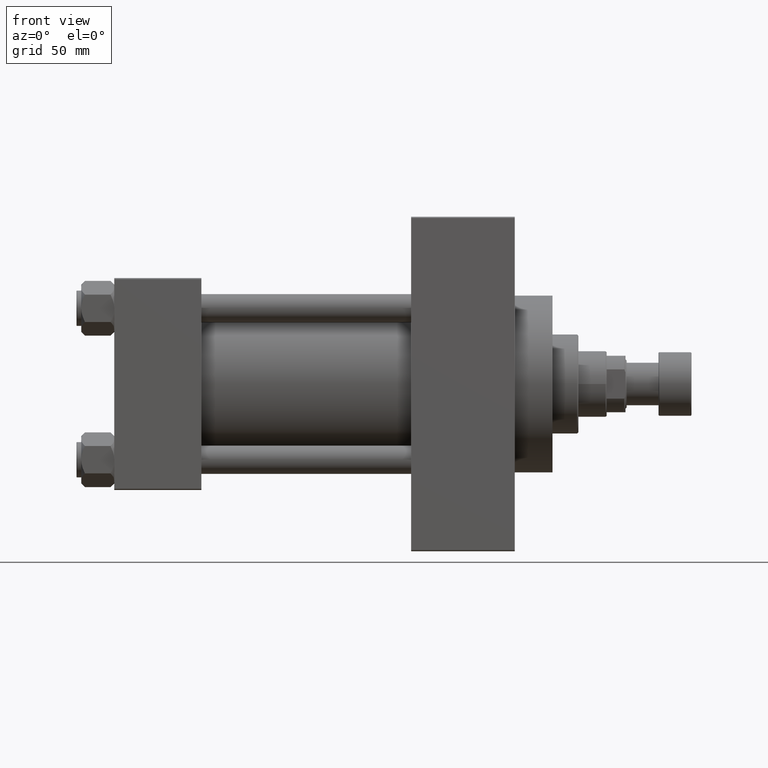
[diagram: clean part render]
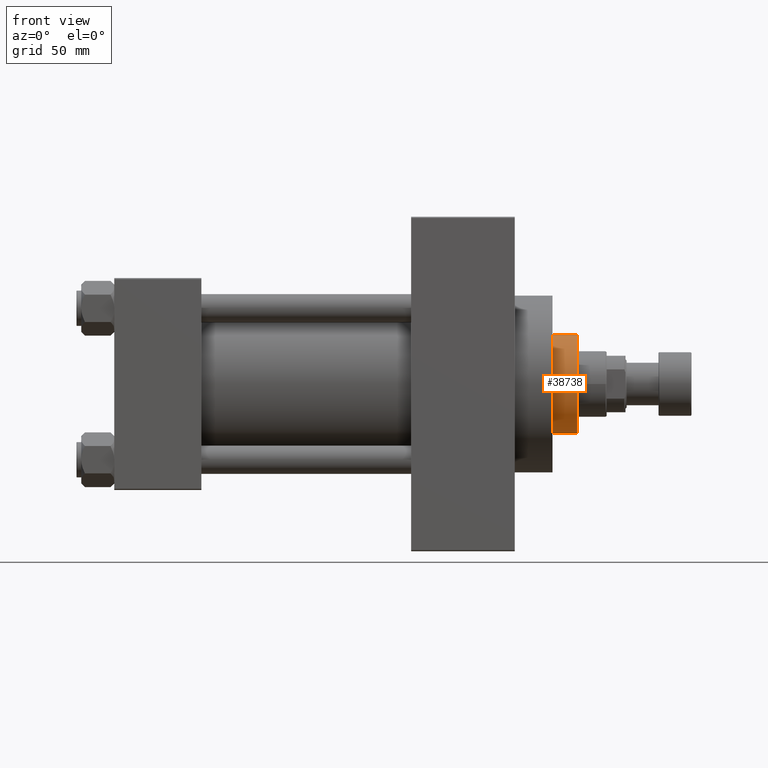
[diagram: same view with one face highlighted and labeled with its STEP entity id]
A machine part, front view. The second image highlights one B-rep face of the part: STEP entity #38738.
In plain terms, the highlighted cylindrical surface (partial cylindrical patch) has radius 21 mm, axis along (-1, -0, 0).
Its self-contained STEP definition (entity closure, byte-faithful):
#965 = CARTESIAN_POINT ( 'NONE',  ( -21.00000000000000000, 0.000000000000000000, 53.76000000000001933 ) ) ;
#2096 = ORIENTED_EDGE ( 'NONE', *, *, #23899, .T. ) ;
#3654 = ORIENTED_EDGE ( 'NONE', *, *, #12997, .F. ) ;
#5046 = CARTESIAN_POINT ( 'NONE',  ( 21.00000000000000000, 2.571758278209441661E-15, 54.26000000000000512 ) ) ;
#9568 = CARTESIAN_POINT ( 'NONE',  ( 0.000000000000000000, 0.000000000000000000, 53.76000000000001933 ) ) ;
#9831 = DIRECTION ( 'NONE',  ( -0.000000000000000000, -0.000000000000000000, -1.000000000000000000 ) ) ;
#10798 = ORIENTED_EDGE ( 'NONE', *, *, #13066, .T. ) ;
#12997 = EDGE_CURVE ( 'NONE', #17796, #18459, #15891, .T. ) ;
#13066 = EDGE_CURVE ( 'NONE', #41105, #39047, #20194, .T. ) ;
#14731 = CARTESIAN_POINT ( 'NONE',  ( 21.00000000000000000, 2.571758278209441661E-15, 43.25999999999999801 ) ) ;
#15027 = CARTESIAN_POINT ( 'NONE',  ( 21.00000000000000000, 2.571758278209441661E-15, 53.76000000000001933 ) ) ;
#15252 = CARTESIAN_POINT ( 'NONE',  ( 0.000000000000000000, 0.000000000000000000, 43.25999999999999801 ) ) ;
#15737 = FACE_OUTER_BOUND ( 'NONE', #22254, .T. ) ;
#15891 = LINE ( 'NONE', #5046, #28352 ) ;
#16326 = DIRECTION ( 'NONE',  ( 0.000000000000000000, 0.000000000000000000, -1.000000000000000000 ) ) ;
#17796 = VERTEX_POINT ( 'NONE', #15027 ) ;
#18386 = AXIS2_PLACEMENT_3D ( 'NONE', #38386, #41522, #26814 ) ;
#18459 = VERTEX_POINT ( 'NONE', #14731 ) ;
#19384 = EDGE_CURVE ( 'NONE', #17796, #41105, #26334, .T. ) ;
#19826 = CYLINDRICAL_SURFACE ( 'NONE', #18386, 21.00000000000000000 ) ;
#20194 = LINE ( 'NONE', #42861, #23751 ) ;
#22254 = EDGE_LOOP ( 'NONE', ( #3654, #22592, #10798, #2096 ) ) ;
#22592 = ORIENTED_EDGE ( 'NONE', *, *, #19384, .T. ) ;
#23751 = VECTOR ( 'NONE', #9831, 1000.000000000000000 ) ;
#23899 = EDGE_CURVE ( 'NONE', #39047, #18459, #36513, .T. ) ;
#26313 = DIRECTION ( 'NONE',  ( 1.000000000000000000, 0.000000000000000000, 0.000000000000000000 ) ) ;
#26334 = CIRCLE ( 'NONE', #37924, 21.00000000000000000 ) ;
#26814 = DIRECTION ( 'NONE',  ( -1.000000000000000000, 0.000000000000000000, 0.000000000000000000 ) ) ;
#28125 = DIRECTION ( 'NONE',  ( 1.000000000000000000, 0.000000000000000000, 0.000000000000000000 ) ) ;
#28352 = VECTOR ( 'NONE', #29845, 1000.000000000000000 ) ;
#28810 = AXIS2_PLACEMENT_3D ( 'NONE', #15252, #29932, #26313 ) ;
#29845 = DIRECTION ( 'NONE',  ( -0.000000000000000000, -0.000000000000000000, -1.000000000000000000 ) ) ;
#29932 = DIRECTION ( 'NONE',  ( 0.000000000000000000, 0.000000000000000000, 1.000000000000000000 ) ) ;
#31352 = CARTESIAN_POINT ( 'NONE',  ( -21.00000000000000000, 0.000000000000000000, 43.25999999999999801 ) ) ;
#36513 = CIRCLE ( 'NONE', #28810, 21.00000000000000000 ) ;
#37924 = AXIS2_PLACEMENT_3D ( 'NONE', #9568, #16326, #28125 ) ;
#38386 = CARTESIAN_POINT ( 'NONE',  ( 0.000000000000000000, 0.000000000000000000, 54.26000000000000512 ) ) ;
#38738 = ADVANCED_FACE ( 'NONE', ( #15737 ), #19826, .T. ) ;
#39047 = VERTEX_POINT ( 'NONE', #31352 ) ;
#41105 = VERTEX_POINT ( 'NONE', #965 ) ;
#41522 = DIRECTION ( 'NONE',  ( -0.000000000000000000, -0.000000000000000000, -1.000000000000000000 ) ) ;
#42861 = CARTESIAN_POINT ( 'NONE',  ( -21.00000000000000000, 0.000000000000000000, 54.26000000000000512 ) ) ;